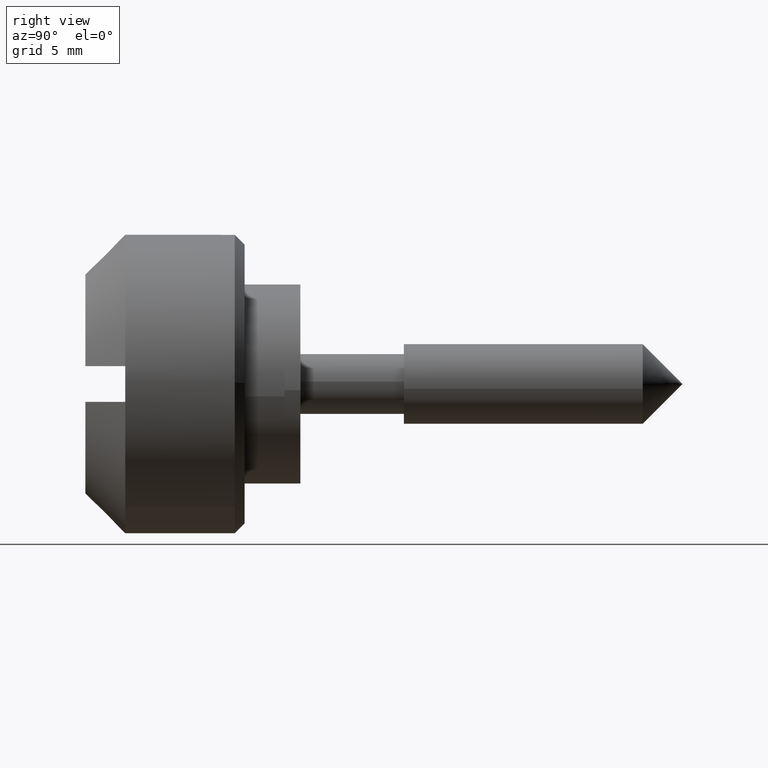
[diagram: clean part render]
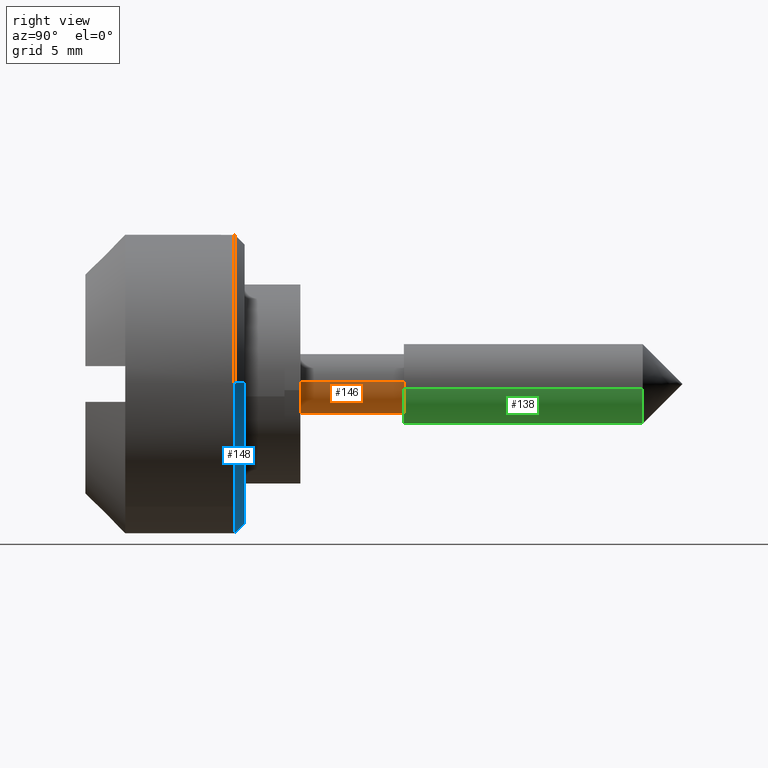
[diagram: same view with three faces highlighted in distinct colors, each labeled with its STEP entity id]
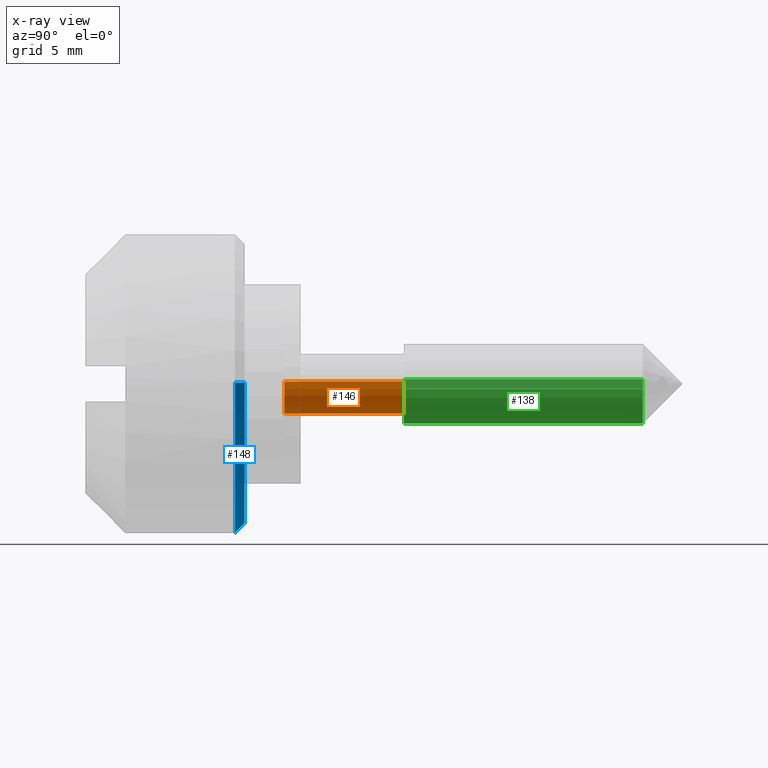
[diagram: x-ray of the same camera — body ghosted, the three highlighted faces saturated]
A machine part, right view with three faces highlighted in distinct colors.
The next image is the same camera in x-ray (body ghosted, the three faces saturated) — at least one of them is partly hidden behind the body in this view.
Their STEP definitions:

[orange] entity #146 — the highlighted cylindrical surface (edge-blend (fillet) strip) has radius 1.5 mm, axis along (-0, 1, 0).
#146=ADVANCED_FACE('',(#496),#495,.T.);
#495=CYLINDRICAL_SURFACE('',#737,1.50000000000E+00);
#496=FACE_OUTER_BOUND('',#738,.T.);
#734=CARTESIAN_POINT('',(6.15000000000E+00,2.03299417301E-16,2.58316401898E-15));
#735=DIRECTION('',(1.00000000000E+00,6.45011040417E-17,8.19564233663E-16));
#736=DIRECTION('',(-1.41748443907E-30,-9.96917333733E-01,7.84590957278E-02));
#737=AXIS2_PLACEMENT_3D('',#734,#735,#736);
#738=EDGE_LOOP('',(#941,#942,#943,#944));
#941=ORIENTED_EDGE('',*,*,#1030,.F.);
#942=ORIENTED_EDGE('',*,*,#1059,.F.);
#943=ORIENTED_EDGE('',*,*,#1024,.T.);
#944=ORIENTED_EDGE('',*,*,#1060,.T.);
#1024=EDGE_CURVE('',#1469,#1461,#1470,.T.);
#1030=EDGE_CURVE('',#1504,#1511,#1512,.T.);
#1059=EDGE_CURVE('',#1469,#1504,#1701,.T.);
#1060=EDGE_CURVE('',#1461,#1511,#1707,.T.);
#1461=VERTEX_POINT('',#1976);
#1469=VERTEX_POINT('',#1982);
#1470=CIRCLE('',#1986,1.50000000000E+00);
#1504=VERTEX_POINT('',#2007);
#1511=VERTEX_POINT('',#2012);
#1512=CIRCLE('',#2016,1.50000000000E+00);
#1701=(BOUNDED_CURVE() B_SPLINE_CURVE(1,(#2125,#2126),.UNSPECIFIED.,.F.,.F.) B_SPLINE_CURVE_WITH_KNOTS((2,2),(8.33333347523E-02,9.16666668865E-01),.UNSPECIFIED.) CURVE() GEOMETRIC_REPRESENTATION_ITEM() RATIONAL_B_SPLINE_CURVE((1.00000000000E+00,1.00000000000E+00)) REPRESENTATION_ITEM('') );
#1707=(BOUNDED_CURVE() B_SPLINE_CURVE(1,(#2127,#2128),.UNSPECIFIED.,.F.,.F.) B_SPLINE_CURVE_WITH_KNOTS((2,2),(8.33333333333E-02,9.16666666667E-01),.UNSPECIFIED.) CURVE() GEOMETRIC_REPRESENTATION_ITEM() RATIONAL_B_SPLINE_CURVE((7.50000000000E-01,7.50000000000E-01)) REPRESENTATION_ITEM('') );
#1976=CARTESIAN_POINT('',(4.13742104503E-16,1.49537029844E+00,-1.17761073989E-01));
#1982=CARTESIAN_POINT('',(1.94292451260E-16,-1.49537600060E+00,1.17688643616E-01));
#1983=CARTESIAN_POINT('',(3.04137037456E-16,-2.53685961127E-13,-5.73208147614E-13));
#1984=DIRECTION('',(1.00000000000E+00,-3.31659000750E-16,-3.28077809415E-15));
#1985=DIRECTION('',(3.28077809415E-15,1.68892677621E-13,1.00000000000E+00));
#1986=AXIS2_PLACEMENT_3D('',#1983,#1984,#1985);
#2007=CARTESIAN_POINT('',(6.00000000000E+00,-1.49537600060E+00,1.17688643616E-01));
#2012=CARTESIAN_POINT('',(6.00000000000E+00,1.49537029844E+00,-1.17761073989E-01));
#2013=CARTESIAN_POINT('',(6.00000000000E+00,7.37188088351E-14,-4.86610751693E-13));
#2014=DIRECTION('',(1.00000000000E+00,-6.28036983474E-16,-1.77635683940E-15));
#2015=DIRECTION('',(1.77635683940E-15,-4.85537536103E-14,1.00000000000E+00));
#2016=AXIS2_PLACEMENT_3D('',#2013,#2014,#2015);
#2125=CARTESIAN_POINT('',(1.02167264648E-08,-1.49537600060E+00,1.17688643592E-01));
#2126=CARTESIAN_POINT('',(6.00000001583E+00,-1.49537600060E+00,1.17688643592E-01));
#2127=CARTESIAN_POINT('',(-1.11022302463E-15,1.49537600060E+00,-1.17688643592E-01));
#2128=CARTESIAN_POINT('',(6.00000000000E+00,1.49537600060E+00,-1.17688643592E-01));

[blue] entity #148 — the highlighted face is a freeform B-spline surface patch.
#148=ADVANCED_FACE('',(#516),#515,.T.);
#515=( BOUNDED_SURFACE() B_SPLINE_SURFACE( 2,1,((#744,#745),(#746,#747),(#748,#749),(#750,#751),(#752,#753)), .UNSPECIFIED.,.F.,.F.,.F.) B_SPLINE_SURFACE_WITH_KNOTS((3,2,3),(2,2),(0.00000000000E+00,5.00000000000E-01,1.00000000000E+00),(0.00000000000E+00,1.00000000000E+00), .UNSPECIFIED. ) GEOMETRIC_REPRESENTATION_ITEM() RATIONAL_B_SPLINE_SURFACE(((1.00000000000E+00,1.00000000000E+00),(7.07106781187E-01,7.07106781187E-01),(1.00000000000E+00,1.00000000000E+00),(7.07106781187E-01,7.07106781187E-01),(1.00000000000E+00,1.00000000000E+00))) REPRESENTATION_ITEM('') SURFACE() );
#516=FACE_OUTER_BOUND('',#754,.T.);
#744=CARTESIAN_POINT('',(5.00000000000E+00,7.47399627623E-18,8.56435144365E-16));
#745=CARTESIAN_POINT('',(-5.60660171781E+00,1.06061978509E+01,-9.25588864076E-02));
#746=CARTESIAN_POINT('',(5.00000000000E+00,7.47399627623E-18,8.56435144365E-16));
#747=CARTESIAN_POINT('',(-5.60660171781E+00,1.05136389645E+01,-1.06987567373E+01));
#748=CARTESIAN_POINT('',(5.00000000000E+00,7.47399627623E-18,8.56435144365E-16));
#749=CARTESIAN_POINT('',(-5.60660171781E+00,-9.25588864076E-02,-1.06061978509E+01));
#750=CARTESIAN_POINT('',(5.00000000000E+00,7.47399627623E-18,8.56435144365E-16));
#751=CARTESIAN_POINT('',(-5.60660171781E+00,-1.06987567373E+01,-1.05136389645E+01));
#752=CARTESIAN_POINT('',(5.00000000000E+00,7.47399627623E-18,8.56435144365E-16));
#753=CARTESIAN_POINT('',(-5.60660171781E+00,-1.06061978509E+01,9.25588864076E-02));
#754=EDGE_LOOP('',(#951,#952,#953,#954,#955,#956,#957));
#951=ORIENTED_EDGE('',*,*,#1057,.F.);
#952=ORIENTED_EDGE('',*,*,#1055,.F.);
#953=ORIENTED_EDGE('',*,*,#1054,.F.);
#954=ORIENTED_EDGE('',*,*,#1061,.F.);
#955=ORIENTED_EDGE('',*,*,#1013,.F.);
#956=ORIENTED_EDGE('',*,*,#1016,.F.);
#957=ORIENTED_EDGE('',*,*,#1062,.T.);
#1013=EDGE_CURVE('',#1391,#1392,#1393,.T.);
#1016=EDGE_CURVE('',#1406,#1391,#1413,.T.);
#1054=EDGE_CURVE('',#1661,#1668,#1669,.T.);
#1055=EDGE_CURVE('',#1668,#1675,#1676,.T.);
#1057=EDGE_CURVE('',#1675,#1688,#1689,.T.);
#1061=EDGE_CURVE('',#1392,#1661,#1713,.T.);
#1062=EDGE_CURVE('',#1406,#1688,#1719,.T.);
#1391=VERTEX_POINT('',#1926);
#1392=VERTEX_POINT('',#1927);
#1393=CIRCLE('',#1931,7.00000000001E+00);
#1406=VERTEX_POINT('',#1937);
#1413=CIRCLE('',#1945,7.00000000000E+00);
#1661=VERTEX_POINT('',#2099);
#1668=VERTEX_POINT('',#2104);
#1669=CIRCLE('',#2108,7.50000000001E+00);
#1675=VERTEX_POINT('',#2109);
#1676=CIRCLE('',#2113,7.50000000001E+00);
#1688=VERTEX_POINT('',#2116);
#1689=CIRCLE('',#2120,7.50000000001E+00);
#1713=(BOUNDED_CURVE() B_SPLINE_CURVE(1,(#2129,#2130),.UNSPECIFIED.,.F.,.F.) B_SPLINE_CURVE_WITH_KNOTS((2,2),(6.59966328740E-01,7.07106782442E-01),.UNSPECIFIED.) CURVE() GEOMETRIC_REPRESENTATION_ITEM() RATIONAL_B_SPLINE_CURVE((1.00000000000E+00,1.00000000000E+00)) REPRESENTATION_ITEM('') );
#1719=(BOUNDED_CURVE() B_SPLINE_CURVE(1,(#2131,#2132),.UNSPECIFIED.,.F.,.F.) B_SPLINE_CURVE_WITH_KNOTS((2,2),(6.59966303677E-01,7.07106747869E-01),.UNSPECIFIED.) CURVE() GEOMETRIC_REPRESENTATION_ITEM() RATIONAL_B_SPLINE_CURVE((7.50000000000E-01,7.50000000000E-01)) REPRESENTATION_ITEM('') );
#1926=CARTESIAN_POINT('',(-2.00000000000E+00,0.00000000000E+00,-7.00000000000E+00));
#1927=CARTESIAN_POINT('',(-2.00000000000E+00,6.99973346145E+00,-6.10857485079E-02));
#1928=CARTESIAN_POINT('',(-2.00000000000E+00,-1.01736397085E-11,1.29065647059E-11));
#1929=DIRECTION('',(1.00000000000E+00,6.78022404398E-29,3.77856476266E-13));
#1930=DIRECTION('',(-3.77856476266E-13,-1.45337710121E-12,1.00000000000E+00));
#1931=AXIS2_PLACEMENT_3D('',#1928,#1929,#1930);
#1937=CARTESIAN_POINT('',(-2.00000000000E+00,-6.99973346145E+00,6.10857485079E-02));
#1942=CARTESIAN_POINT('',(-2.00000000000E+00,1.84785520219E-12,4.42978986825E-12));
#1943=DIRECTION('',(1.00000000000E+00,1.00738132165E-12,8.58094947496E-11));
#1944=DIRECTION('',(-2.58523361448E-13,9.99961923064E-01,-8.72653550049E-03));
#1945=AXIS2_PLACEMENT_3D('',#1942,#1943,#1944);
#2099=CARTESIAN_POINT('',(-2.50000000000E+00,7.49971442792E+00,-6.54484514266E-02));
#2104=CARTESIAN_POINT('',(-2.50000000000E+00,3.49720252757E-15,-7.50000000001E+00));
#2105=CARTESIAN_POINT('',(-2.50000000000E+00,5.00666175185E-12,-6.34914343323E-12));
#2106=DIRECTION('',(-1.00000000000E+00,3.02087850107E-17,1.73093319890E-13));
#2107=DIRECTION('',(-1.73093319890E-13,-6.67452204617E-13,-1.00000000000E+00));
#2108=AXIS2_PLACEMENT_3D('',#2105,#2106,#2107);
#2109=CARTESIAN_POINT('',(-2.50000000000E+00,-4.28951641780E+00,-6.15223934040E+00));
#2110=CARTESIAN_POINT('',(-2.50000000000E+00,5.00666175185E-12,-6.34914343323E-12));
#2111=DIRECTION('',(-1.00000000000E+00,3.02087850107E-17,1.73093319890E-13));
#2112=DIRECTION('',(-1.73093319890E-13,-6.67452204617E-13,-1.00000000000E+00));
#2113=AXIS2_PLACEMENT_3D('',#2110,#2111,#2112);
#2116=CARTESIAN_POINT('',(-2.50000000000E+00,-7.49971443088E+00,6.54481117907E-02));
#2117=CARTESIAN_POINT('',(-2.50000000000E+00,5.00666175185E-12,-6.34914343323E-12));
#2118=DIRECTION('',(-1.00000000000E+00,3.02087850107E-17,1.73093319890E-13));
#2119=DIRECTION('',(-1.73093319890E-13,-6.67452204617E-13,-1.00000000000E+00));
#2120=AXIS2_PLACEMENT_3D('',#2117,#2118,#2119);
#2129=CARTESIAN_POINT('',(-1.99999999611E+00,6.99973345756E+00,-6.10857484547E-02));
#2130=CARTESIAN_POINT('',(-2.50000001333E+00,7.49971443631E+00,-6.54490163541E-02));
#2131=CARTESIAN_POINT('',(-1.99999973028E+00,-6.99973319174E+00,6.10857461349E-02));
#2132=CARTESIAN_POINT('',(-2.49999964662E+00,-7.49971406962E+00,6.54490131540E-02));

[green] entity #138 — the highlighted cylindrical surface (partial cylindrical patch) has radius 2 mm, axis along (0, 1, 0).
#138=ADVANCED_FACE('',(#416),#415,.T.);
#415=CYLINDRICAL_SURFACE('',#685,2.00000000000E+00);
#416=FACE_OUTER_BOUND('',#686,.T.);
#682=CARTESIAN_POINT('',(1.83000000000E+01,-3.75403085890E-14,3.15917146992E-13));
#683=DIRECTION('',(1.00000000000E+00,-5.95688549354E-15,5.01146473287E-14));
#684=DIRECTION('',(-8.02744857153E-27,-9.93009526364E-01,-1.18034234657E-01));
#685=AXIS2_PLACEMENT_3D('',#682,#683,#684);
#686=EDGE_LOOP('',(#895,#896,#897,#898,#899));
#895=ORIENTED_EDGE('',*,*,#1041,.T.);
#896=ORIENTED_EDGE('',*,*,#1042,.T.);
#897=ORIENTED_EDGE('',*,*,#1043,.F.);
#898=ORIENTED_EDGE('',*,*,#1027,.F.);
#899=ORIENTED_EDGE('',*,*,#1044,.T.);
#1027=EDGE_CURVE('',#1483,#1490,#1491,.T.);
#1041=EDGE_CURVE('',#1582,#1583,#1584,.T.);
#1042=EDGE_CURVE('',#1583,#1590,#1591,.T.);
#1043=EDGE_CURVE('',#1490,#1590,#1597,.T.);
#1044=EDGE_CURVE('',#1483,#1582,#1603,.T.);
#1483=VERTEX_POINT('',#1992);
#1490=VERTEX_POINT('',#1997);
#1491=CIRCLE('',#2001,2.00000000002E+00);
#1582=VERTEX_POINT('',#2060);
#1583=VERTEX_POINT('',#2061);
#1584=CIRCLE('',#2065,2.00000000000E+00);
#1590=VERTEX_POINT('',#2066);
#1591=CIRCLE('',#2070,2.00000000000E+00);
#1597=(BOUNDED_CURVE() B_SPLINE_CURVE(1,(#2071,#2072),.UNSPECIFIED.,.F.,.F.) B_SPLINE_CURVE_WITH_KNOTS((2,2),(8.33333343261E-02,9.16666667006E-01),.UNSPECIFIED.) CURVE() GEOMETRIC_REPRESENTATION_ITEM() RATIONAL_B_SPLINE_CURVE((1.00000000000E+00,1.00000000000E+00)) REPRESENTATION_ITEM('') );
#1603=(BOUNDED_CURVE() B_SPLINE_CURVE(1,(#2073,#2074),.UNSPECIFIED.,.F.,.F.) B_SPLINE_CURVE_WITH_KNOTS((2,2),(8.33333333333E-02,9.16666666667E-01),.UNSPECIFIED.) CURVE() GEOMETRIC_REPRESENTATION_ITEM() RATIONAL_B_SPLINE_CURVE((7.50000000000E-01,7.50000000000E-01)) REPRESENTATION_ITEM('') );
#1992=CARTESIAN_POINT('',(6.00000000000E+00,1.98597822183E+00,2.36411722643E-01));
#1997=CARTESIAN_POINT('',(6.00000000000E+00,-1.98601913905E+00,-2.36067743038E-01));
#1998=CARTESIAN_POINT('',(6.00000000000E+00,2.24891216760E-11,2.39055442108E-11));
#1999=DIRECTION('',(-1.00000000000E+00,-1.57009245868E-16,-4.44089209843E-16));
#2000=DIRECTION('',(-4.44089209841E-16,-1.12441167489E-11,1.00000000000E+00));
#2001=AXIS2_PLACEMENT_3D('',#1998,#1999,#2000);
#2060=CARTESIAN_POINT('',(1.80000000000E+01,1.98600766176E+00,2.36164280576E-01));
#2061=CARTESIAN_POINT('',(1.80000000000E+01,-5.23559271675E-02,-1.99931459678E+00));
#2062=CARTESIAN_POINT('',(1.80000000000E+01,4.44089209850E-16,-4.44089209850E-16));
#2063=DIRECTION('',(-1.00000000000E+00,9.53239756909E-15,-5.00960414811E-14));
#2064=DIRECTION('',(-5.00960414811E-14,6.93889390391E-17,1.00000000000E+00));
#2065=AXIS2_PLACEMENT_3D('',#2062,#2063,#2064);
#2066=CARTESIAN_POINT('',(1.80000000000E+01,-1.98601913906E+00,-2.36067743037E-01));
#2067=CARTESIAN_POINT('',(1.80000000000E+01,4.44089209850E-16,-4.44089209850E-16));
#2068=DIRECTION('',(-1.00000000000E+00,9.53239756909E-15,-5.00960414811E-14));
#2069=DIRECTION('',(-5.00960414811E-14,6.93889390391E-17,1.00000000000E+00));
#2070=AXIS2_PLACEMENT_3D('',#2067,#2068,#2069);
#2071=CARTESIAN_POINT('',(6.00000001430E+00,-1.98601905273E+00,-2.36068469314E-01));
#2072=CARTESIAN_POINT('',(1.80000000049E+01,-1.98601905273E+00,-2.36068469313E-01));
#2073=CARTESIAN_POINT('',(6.00000000000E+00,1.98601905273E+00,2.36068469313E-01));
#2074=CARTESIAN_POINT('',(1.80000000000E+01,1.98601905273E+00,2.36068469314E-01));